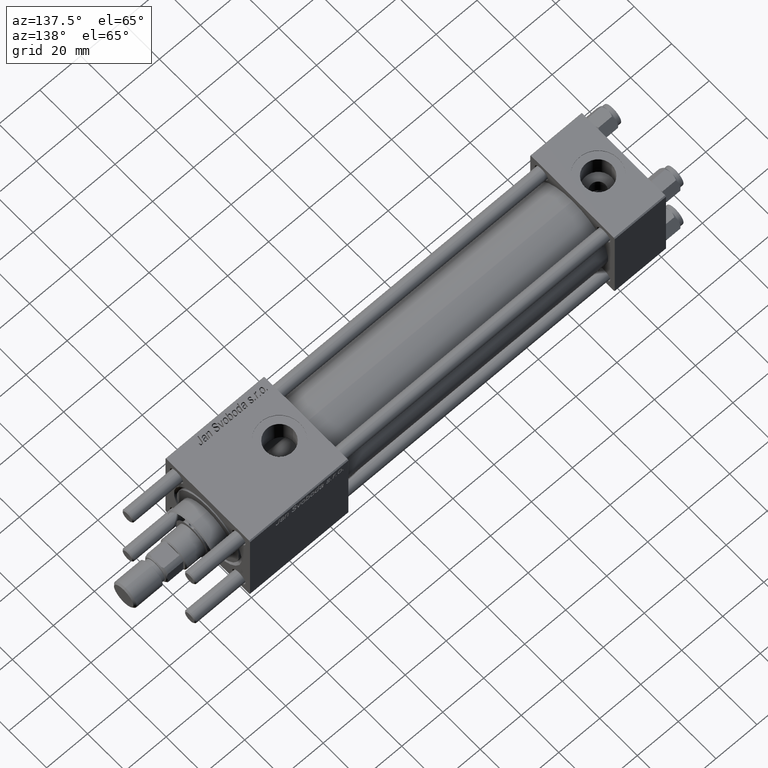
[diagram: clean part render]
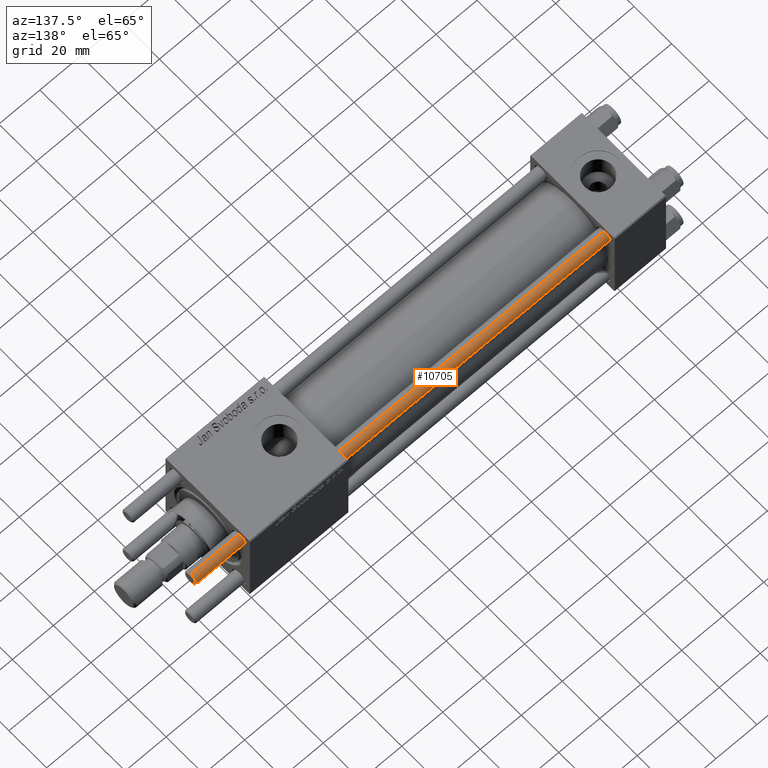
[diagram: same view with one face highlighted and labeled with its STEP entity id]
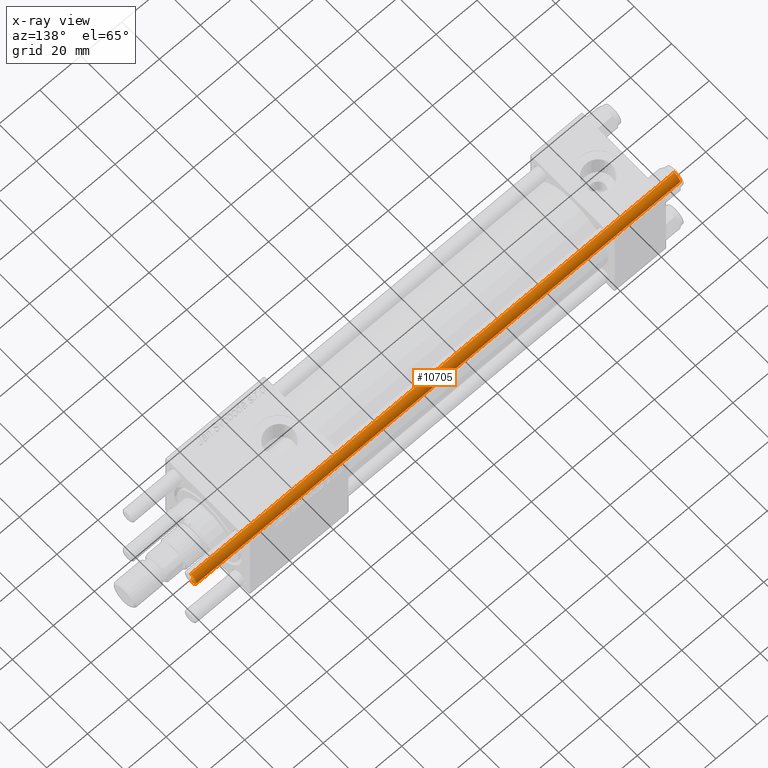
[diagram: x-ray of the same camera — body ghosted, the highlighted face saturated]
A machine part, auxiliary view. The second image highlights one B-rep face of the part: STEP entity #10705.
The next image is the same camera in x-ray: the body ghosted, the highlighted face saturated — about 0% of this face is hidden behind the body in this view.
In plain terms, the highlighted cylindrical surface (edge-blend (fillet) strip) has radius 3 mm, axis along (1, -0, -0).
Its self-contained STEP definition (entity closure, byte-faithful):
#2 = LINE ( 'NONE', #13750, #18977 ) ;
#2080 = AXIS2_PLACEMENT_3D ( 'NONE', #34604, #38781, #57045 ) ;
#4559 = DIRECTION ( 'NONE',  ( 0.000000000000000000, 0.000000000000000000, -1.000000000000000000 ) ) ;
#7957 = ORIENTED_EDGE ( 'NONE', *, *, #32877, .T. ) ;
#8390 = DIRECTION ( 'NONE',  ( -0.000000000000000000, -0.000000000000000000, -1.000000000000000000 ) ) ;
#9350 = DIRECTION ( 'NONE',  ( -0.000000000000000000, -0.000000000000000000, -1.000000000000000000 ) ) ;
#10458 = VECTOR ( 'NONE', #49958, 1000.000000000000000 ) ;
#10658 = EDGE_CURVE ( 'NONE', #25042, #15521, #13338, .T. ) ;
#10705 = ADVANCED_FACE ( 'NONE', ( #40449 ), #18888, .T. ) ;
#13338 = CIRCLE ( 'NONE', #48688, 3.000000000000000444 ) ;
#13750 = CARTESIAN_POINT ( 'NONE',  ( -3.000000000000000444, 0.000000000000000000, 237.0000000000000000 ) ) ;
#15521 = VERTEX_POINT ( 'NONE', #19679 ) ;
#18285 = CIRCLE ( 'NONE', #2080, 3.000000000000000444 ) ;
#18568 = CARTESIAN_POINT ( 'NONE',  ( 3.000000000000000444, 3.673940397442060361E-16, 0.5000000000000004441 ) ) ;
#18888 = CYLINDRICAL_SURFACE ( 'NONE', #55393, 3.000000000000000444 ) ;
#18977 = VECTOR ( 'NONE', #8390, 1000.000000000000000 ) ;
#19679 = CARTESIAN_POINT ( 'NONE',  ( 3.000000000000000444, 3.673940397442060361E-16, 236.5000000000000568 ) ) ;
#21916 = VERTEX_POINT ( 'NONE', #18568 ) ;
#23071 = CARTESIAN_POINT ( 'NONE',  ( -3.000000000000000444, 0.000000000000000000, 236.5000000000000568 ) ) ;
#23370 = CARTESIAN_POINT ( 'NONE',  ( 0.000000000000000000, 0.000000000000000000, 236.5000000000000568 ) ) ;
#25042 = VERTEX_POINT ( 'NONE', #23071 ) ;
#27269 = CARTESIAN_POINT ( 'NONE',  ( 0.000000000000000000, 0.000000000000000000, 237.0000000000000000 ) ) ;
#27495 = CARTESIAN_POINT ( 'NONE',  ( 3.000000000000000444, 3.673940397442060361E-16, 237.0000000000000000 ) ) ;
#28315 = EDGE_CURVE ( 'NONE', #25042, #47422, #2, .T. ) ;
#30190 = ORIENTED_EDGE ( 'NONE', *, *, #10658, .T. ) ;
#31719 = LINE ( 'NONE', #27495, #10458 ) ;
#32877 = EDGE_CURVE ( 'NONE', #15521, #21916, #31719, .T. ) ;
#34604 = CARTESIAN_POINT ( 'NONE',  ( 0.000000000000000000, 0.000000000000000000, 0.5000000000000004441 ) ) ;
#36861 = DIRECTION ( 'NONE',  ( 1.000000000000000000, 0.000000000000000000, 0.000000000000000000 ) ) ;
#38781 = DIRECTION ( 'NONE',  ( -0.000000000000000000, -0.000000000000000000, 1.000000000000000000 ) ) ;
#40449 = FACE_OUTER_BOUND ( 'NONE', #44244, .T. ) ;
#40735 = DIRECTION ( 'NONE',  ( -1.000000000000000000, 0.000000000000000000, 0.000000000000000000 ) ) ;
#44244 = EDGE_LOOP ( 'NONE', ( #30190, #7957, #52416, #52868 ) ) ;
#44825 = CARTESIAN_POINT ( 'NONE',  ( -3.000000000000000444, 0.000000000000000000, 0.5000000000000004441 ) ) ;
#45218 = EDGE_CURVE ( 'NONE', #21916, #47422, #18285, .T. ) ;
#47422 = VERTEX_POINT ( 'NONE', #44825 ) ;
#48688 = AXIS2_PLACEMENT_3D ( 'NONE', #23370, #4559, #36861 ) ;
#49958 = DIRECTION ( 'NONE',  ( -0.000000000000000000, -0.000000000000000000, -1.000000000000000000 ) ) ;
#52416 = ORIENTED_EDGE ( 'NONE', *, *, #45218, .T. ) ;
#52868 = ORIENTED_EDGE ( 'NONE', *, *, #28315, .F. ) ;
#55393 = AXIS2_PLACEMENT_3D ( 'NONE', #27269, #9350, #40735 ) ;
#57045 = DIRECTION ( 'NONE',  ( 1.000000000000000000, 0.000000000000000000, 0.000000000000000000 ) ) ;